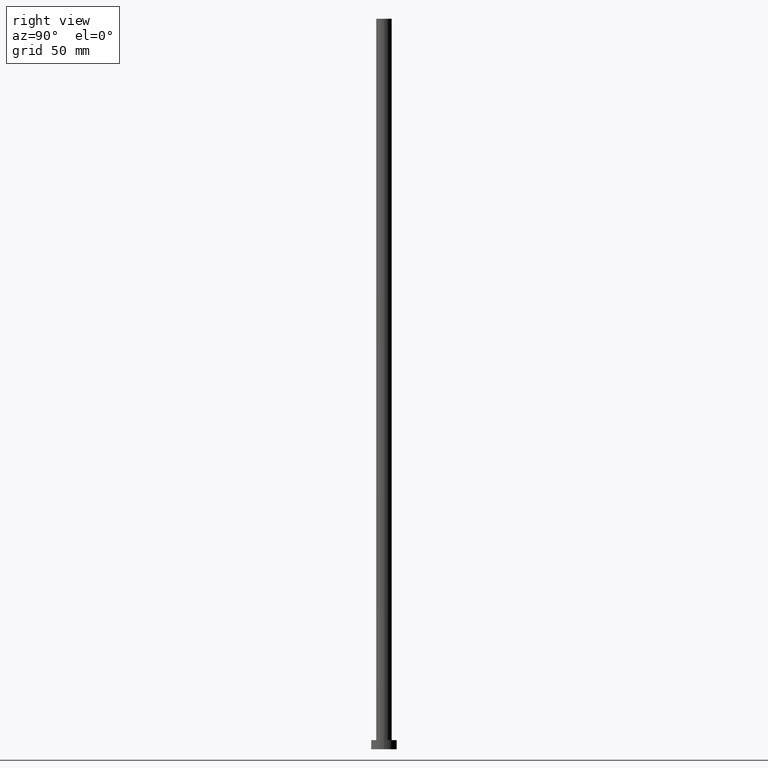
[diagram: clean part render]
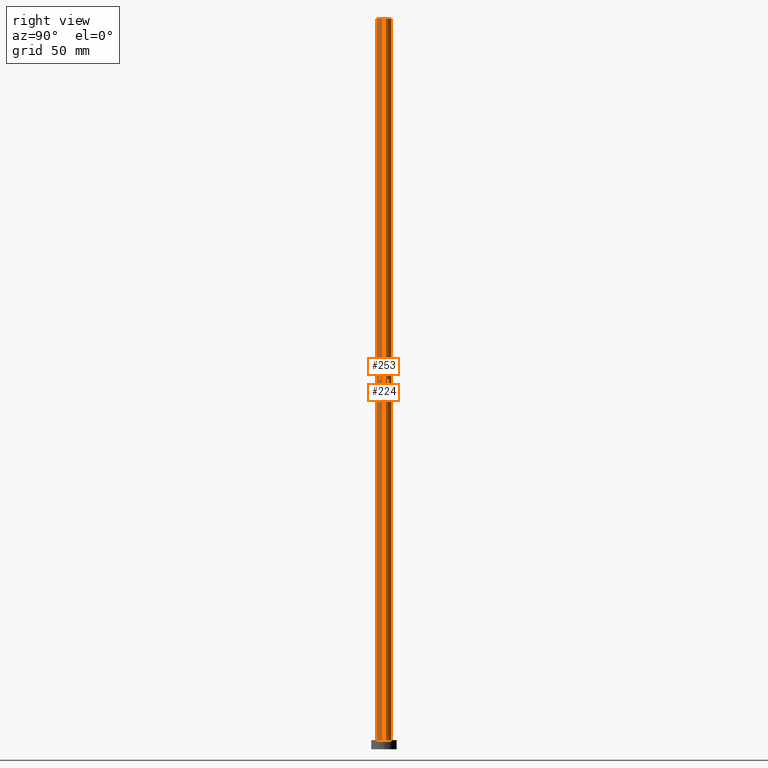
[diagram: same view with one multi-face feature highlighted, each face labeled with its STEP entity id]
A machine part, right view. The highlighted faces form ONE feature: a constant-radius fillet chain: 2 tangent blend faces with common blend radius 4.25 mm. The faces share edges in the B-rep.
Their STEP definitions:
[1] entity #224 (Cylinder):
#1 = CARTESIAN_POINT ( 'NONE',  ( 0.000000000000000000, 0.000000000000000000, 400.0000000000000000 ) ) ;
#10 = DIRECTION ( 'NONE',  ( 1.000000000000000000, 0.000000000000000000, 0.000000000000000000 ) ) ;
#16 = CYLINDRICAL_SURFACE ( 'NONE', #143, 4.250000000000000000 ) ;
#20 = VERTEX_POINT ( 'NONE', #111 ) ;
#25 = EDGE_CURVE ( 'NONE', #248, #167, #124, .T. ) ;
#27 = AXIS2_PLACEMENT_3D ( 'NONE', #228, #246, #59 ) ;
#28 = CARTESIAN_POINT ( 'NONE',  ( -4.250000000000000000, 0.000000000000000000, 400.0000000000000000 ) ) ;
#33 = ORIENTED_EDGE ( 'NONE', *, *, #220, .F. ) ;
#58 = VECTOR ( 'NONE', #229, 1000.000000000000000 ) ;
#59 = DIRECTION ( 'NONE',  ( 1.000000000000000000, 0.000000000000000000, 0.000000000000000000 ) ) ;
#71 = DIRECTION ( 'NONE',  ( -0.000000000000000000, -0.000000000000000000, -1.000000000000000000 ) ) ;
#78 = VECTOR ( 'NONE', #71, 1000.000000000000000 ) ;
#87 = DIRECTION ( 'NONE',  ( -0.000000000000000000, -0.000000000000000000, -1.000000000000000000 ) ) ;
#106 = EDGE_CURVE ( 'NONE', #20, #185, #120, .T. ) ;
#111 = CARTESIAN_POINT ( 'NONE',  ( 4.250000000000000000, 5.204748896376249713E-16, 400.0000000000000000 ) ) ;
#120 = CIRCLE ( 'NONE', #180, 4.250000000000000000 ) ;
#121 = LINE ( 'NONE', #28, #78 ) ;
#124 = CIRCLE ( 'NONE', #27, 4.250000000000000000 ) ;
#137 = ORIENTED_EDGE ( 'NONE', *, *, #106, .F. ) ;
#141 = CARTESIAN_POINT ( 'NONE',  ( 4.250000000000000000, 5.204748896376249713E-16, 400.0000000000000000 ) ) ;
#143 = AXIS2_PLACEMENT_3D ( 'NONE', #1, #87, #149 ) ;
#146 = EDGE_CURVE ( 'NONE', #20, #248, #249, .T. ) ;
#149 = DIRECTION ( 'NONE',  ( -1.000000000000000000, 0.000000000000000000, 0.000000000000000000 ) ) ;
#167 = VERTEX_POINT ( 'NONE', #170 ) ;
#170 = CARTESIAN_POINT ( 'NONE',  ( -4.250000000000000000, 0.000000000000000000, 5.000000000000000000 ) ) ;
#180 = AXIS2_PLACEMENT_3D ( 'NONE', #184, #209, #10 ) ;
#184 = CARTESIAN_POINT ( 'NONE',  ( 0.000000000000000000, 0.000000000000000000, 400.0000000000000000 ) ) ;
#185 = VERTEX_POINT ( 'NONE', #212 ) ;
#209 = DIRECTION ( 'NONE',  ( 0.000000000000000000, 0.000000000000000000, 1.000000000000000000 ) ) ;
#212 = CARTESIAN_POINT ( 'NONE',  ( -4.250000000000000000, 0.000000000000000000, 400.0000000000000000 ) ) ;
#215 = CARTESIAN_POINT ( 'NONE',  ( 4.250000000000000000, 5.204748896376249713E-16, 5.000000000000000000 ) ) ;
#220 = EDGE_CURVE ( 'NONE', #185, #167, #121, .T. ) ;
#224 = ADVANCED_FACE ( 'NONE', ( #237 ), #16, .T. ) ;
#228 = CARTESIAN_POINT ( 'NONE',  ( 0.000000000000000000, 0.000000000000000000, 5.000000000000000000 ) ) ;
#229 = DIRECTION ( 'NONE',  ( -0.000000000000000000, -0.000000000000000000, -1.000000000000000000 ) ) ;
#237 = FACE_OUTER_BOUND ( 'NONE', #251, .T. ) ;
#238 = ORIENTED_EDGE ( 'NONE', *, *, #146, .T. ) ;
#240 = ORIENTED_EDGE ( 'NONE', *, *, #25, .T. ) ;
#246 = DIRECTION ( 'NONE',  ( 0.000000000000000000, 0.000000000000000000, 1.000000000000000000 ) ) ;
#248 = VERTEX_POINT ( 'NONE', #215 ) ;
#249 = LINE ( 'NONE', #141, #58 ) ;
#251 = EDGE_LOOP ( 'NONE', ( #137, #238, #240, #33 ) ) ;
[2] entity #253 (Cylinder):
#20 = VERTEX_POINT ( 'NONE', #111 ) ;
#28 = CARTESIAN_POINT ( 'NONE',  ( -4.250000000000000000, 0.000000000000000000, 400.0000000000000000 ) ) ;
#30 = AXIS2_PLACEMENT_3D ( 'NONE', #186, #44, #82 ) ;
#44 = DIRECTION ( 'NONE',  ( 0.000000000000000000, 0.000000000000000000, 1.000000000000000000 ) ) ;
#47 = CYLINDRICAL_SURFACE ( 'NONE', #105, 4.250000000000000000 ) ;
#51 = ORIENTED_EDGE ( 'NONE', *, *, #203, .T. ) ;
#58 = VECTOR ( 'NONE', #229, 1000.000000000000000 ) ;
#71 = DIRECTION ( 'NONE',  ( -0.000000000000000000, -0.000000000000000000, -1.000000000000000000 ) ) ;
#78 = VECTOR ( 'NONE', #71, 1000.000000000000000 ) ;
#82 = DIRECTION ( 'NONE',  ( 1.000000000000000000, 0.000000000000000000, 0.000000000000000000 ) ) ;
#85 = DIRECTION ( 'NONE',  ( 0.000000000000000000, 0.000000000000000000, 1.000000000000000000 ) ) ;
#100 = EDGE_CURVE ( 'NONE', #185, #20, #110, .T. ) ;
#105 = AXIS2_PLACEMENT_3D ( 'NONE', #148, #173, #233 ) ;
#110 = CIRCLE ( 'NONE', #30, 4.250000000000000000 ) ;
#111 = CARTESIAN_POINT ( 'NONE',  ( 4.250000000000000000, 5.204748896376249713E-16, 400.0000000000000000 ) ) ;
#121 = LINE ( 'NONE', #28, #78 ) ;
#122 = DIRECTION ( 'NONE',  ( 1.000000000000000000, 0.000000000000000000, 0.000000000000000000 ) ) ;
#141 = CARTESIAN_POINT ( 'NONE',  ( 4.250000000000000000, 5.204748896376249713E-16, 400.0000000000000000 ) ) ;
#146 = EDGE_CURVE ( 'NONE', #20, #248, #249, .T. ) ;
#148 = CARTESIAN_POINT ( 'NONE',  ( 0.000000000000000000, 0.000000000000000000, 400.0000000000000000 ) ) ;
#159 = ORIENTED_EDGE ( 'NONE', *, *, #100, .F. ) ;
#167 = VERTEX_POINT ( 'NONE', #170 ) ;
#170 = CARTESIAN_POINT ( 'NONE',  ( -4.250000000000000000, 0.000000000000000000, 5.000000000000000000 ) ) ;
#172 = FACE_OUTER_BOUND ( 'NONE', #245, .T. ) ;
#173 = DIRECTION ( 'NONE',  ( -0.000000000000000000, -0.000000000000000000, -1.000000000000000000 ) ) ;
#182 = ORIENTED_EDGE ( 'NONE', *, *, #146, .F. ) ;
#185 = VERTEX_POINT ( 'NONE', #212 ) ;
#186 = CARTESIAN_POINT ( 'NONE',  ( 0.000000000000000000, 0.000000000000000000, 400.0000000000000000 ) ) ;
#189 = ORIENTED_EDGE ( 'NONE', *, *, #220, .T. ) ;
#191 = AXIS2_PLACEMENT_3D ( 'NONE', #196, #85, #122 ) ;
#196 = CARTESIAN_POINT ( 'NONE',  ( 0.000000000000000000, 0.000000000000000000, 5.000000000000000000 ) ) ;
#199 = CIRCLE ( 'NONE', #191, 4.250000000000000000 ) ;
#203 = EDGE_CURVE ( 'NONE', #167, #248, #199, .T. ) ;
#212 = CARTESIAN_POINT ( 'NONE',  ( -4.250000000000000000, 0.000000000000000000, 400.0000000000000000 ) ) ;
#215 = CARTESIAN_POINT ( 'NONE',  ( 4.250000000000000000, 5.204748896376249713E-16, 5.000000000000000000 ) ) ;
#220 = EDGE_CURVE ( 'NONE', #185, #167, #121, .T. ) ;
#229 = DIRECTION ( 'NONE',  ( -0.000000000000000000, -0.000000000000000000, -1.000000000000000000 ) ) ;
#233 = DIRECTION ( 'NONE',  ( -1.000000000000000000, 0.000000000000000000, 0.000000000000000000 ) ) ;
#245 = EDGE_LOOP ( 'NONE', ( #182, #159, #189, #51 ) ) ;
#248 = VERTEX_POINT ( 'NONE', #215 ) ;
#249 = LINE ( 'NONE', #141, #58 ) ;
#253 = ADVANCED_FACE ( 'NONE', ( #172 ), #47, .T. ) ;